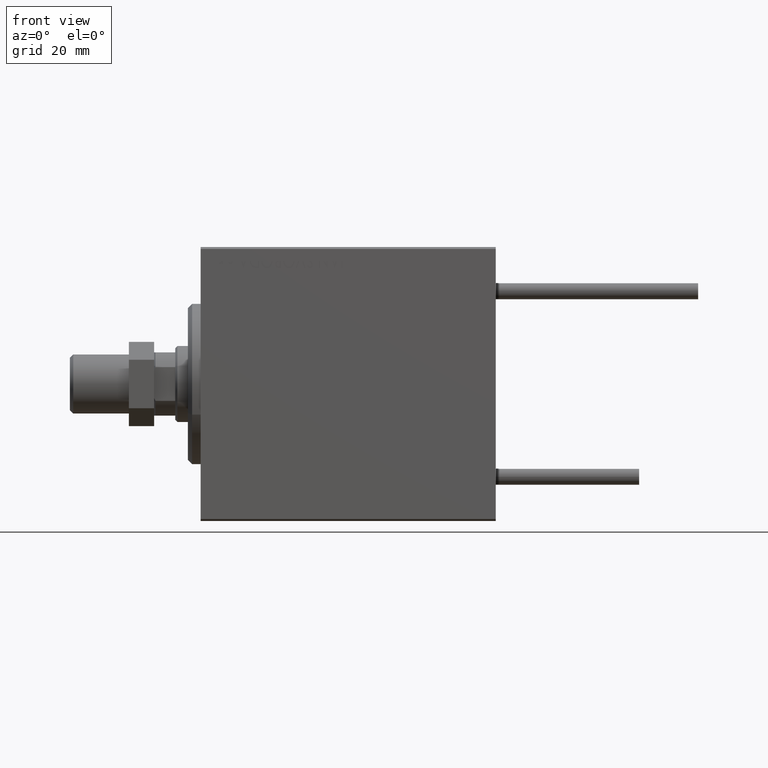
[diagram: clean part render]
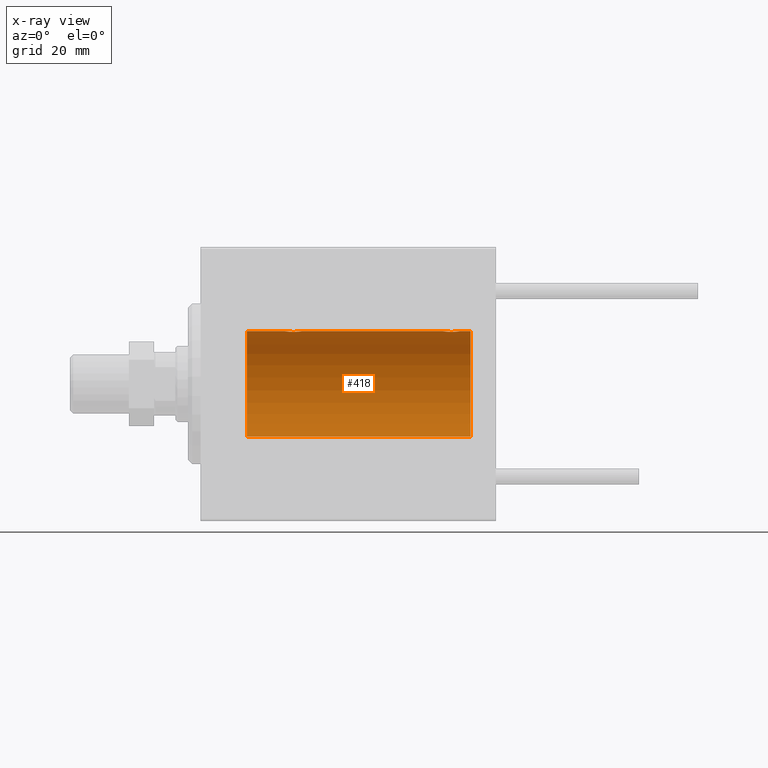
[diagram: x-ray — body ghosted, one internal face saturated and labeled with its STEP entity id]
A machine part, front view, then the same camera in x-ray: the body is ghosted and one INTERNAL B-rep face — a face not visible from any outside direction — is saturated and labeled: STEP entity #418.
In plain terms, the highlighted cylindrical surface (partial cylindrical patch) has radius 12.5 mm, axis along (-1, -0, -0).
Its self-contained STEP definition (entity closure, byte-faithful):
#418 = ADVANCED_FACE ( 'NONE', ( #16310 ), #31975, .F. ) ;
#510 = CARTESIAN_POINT ( 'NONE',  ( 60.72966493873149574, 1.598680238462370617, 12.39873273758732353 ) ) ;
#914 = CIRCLE ( 'NONE', #13122, 12.50000000000000000 ) ;
#1812 = EDGE_CURVE ( 'NONE', #5024, #32496, #23037, .T. ) ;
#1895 = CARTESIAN_POINT ( 'NONE',  ( 58.28019209405419332, 1.590288205413972866, 12.39864157855464732 ) ) ;
#2147 = CARTESIAN_POINT ( 'NONE',  ( 58.49664185700819274, 1.734998657226764163, 12.37922086519035858 ) ) ;
#3859 = CARTESIAN_POINT ( 'NONE',  ( 61.43604351777364059, 0.5184196815546071591, 12.48990118705761354 ) ) ;
#4113 = CARTESIAN_POINT ( 'NONE',  ( 60.50683120447499164, 1.747608771958137908, 12.37764291807175354 ) ) ;
#4988 = DIRECTION ( 'NONE',  ( -1.000000000000000000, -0.000000000000000000, -0.000000000000000000 ) ) ;
#5024 = VERTEX_POINT ( 'NONE', #14759 ) ;
#5656 = AXIS2_PLACEMENT_3D ( 'NONE', #35651, #23848, #9362 ) ;
#5753 = CARTESIAN_POINT ( 'NONE',  ( 57.50000000000000000, -7.266434456262306043E-23, 12.50000000000000000 ) ) ;
#6208 = CARTESIAN_POINT ( 'NONE',  ( 20.20257508083844300, 0.8868029758979382171, 12.46909283808506430 ) ) ;
#6943 = LINE ( 'NONE', #42127, #41298 ) ;
#6975 = CARTESIAN_POINT ( 'NONE',  ( 20.78019209405420042, 1.590288205413970646, 12.39864157855465088 ) ) ;
#7342 = VERTEX_POINT ( 'NONE', #40807 ) ;
#8736 = CARTESIAN_POINT ( 'NONE',  ( 61.29699211628619793, 0.8876934327478148701, 12.46903010196599659 ) ) ;
#8844 = LINE ( 'NONE', #48596, #45141 ) ;
#9362 = DIRECTION ( 'NONE',  ( 0.000000000000000000, 0.000000000000000000, 1.000000000000000000 ) ) ;
#9606 = CARTESIAN_POINT ( 'NONE',  ( 57.50000000000000000, 0.1306394121199370428, 12.50000000000000000 ) ) ;
#10305 = CARTESIAN_POINT ( 'NONE',  ( 20.41008591319371490, 1.220297236145720277, 12.44076681548080288 ) ) ;
#10350 = CARTESIAN_POINT ( 'NONE',  ( 57.76529257602388157, 1.003863686549167022, 12.46009879577771429 ) ) ;
#10569 = CARTESIAN_POINT ( 'NONE',  ( 20.49266449635678100, 1.321095788880537247, 12.43034574091277911 ) ) ;
#10692 = VECTOR ( 'NONE', #16670, 1000.000000000000000 ) ;
#11233 = ORIENTED_EDGE ( 'NONE', *, *, #24373, .F. ) ;
#12804 = ORIENTED_EDGE ( 'NONE', *, *, #27680, .F. ) ;
#12974 = CARTESIAN_POINT ( 'NONE',  ( 64.00000000000000000, 0.000000000000000000, 0.000000000000000000 ) ) ;
#13122 = AXIS2_PLACEMENT_3D ( 'NONE', #12974, #20948, #44293 ) ;
#13980 = DIRECTION ( 'NONE',  ( -1.000000000000000000, -0.000000000000000000, -0.000000000000000000 ) ) ;
#14190 = VERTEX_POINT ( 'NONE', #46350 ) ;
#14423 = CARTESIAN_POINT ( 'NONE',  ( 19.99999999999999645, -7.265724481447607133E-23, 12.50000000000000000 ) ) ;
#14495 = LINE ( 'NONE', #37356, #36098 ) ;
#14689 = CARTESIAN_POINT ( 'NONE',  ( 20.06438225478150628, 0.5201193324741335555, 12.48983485452575337 ) ) ;
#14759 = CARTESIAN_POINT ( 'NONE',  ( 61.50000000000000711, -7.215738317004035941E-16, 12.50000000000000000 ) ) ;
#14902 = CARTESIAN_POINT ( 'NONE',  ( 57.50000000000000000, -7.266434456262306043E-23, 12.50000000000000000 ) ) ;
#14944 = CARTESIAN_POINT ( 'NONE',  ( 21.11343686466984693, 1.797558627508996532, 12.37018026341339194 ) ) ;
#14955 = ORIENTED_EDGE ( 'NONE', *, *, #28028, .T. ) ;
#15459 = ORIENTED_EDGE ( 'NONE', *, *, #1812, .T. ) ;
#16310 = FACE_OUTER_BOUND ( 'NONE', #26071, .T. ) ;
#16645 = CARTESIAN_POINT ( 'NONE',  ( 10.99999999999999645, 1.530808498934191521E-15, -12.50000000000000000 ) ) ;
#16670 = DIRECTION ( 'NONE',  ( -1.000000000000000000, -0.000000000000000000, -0.000000000000000000 ) ) ;
#16862 = AXIS2_PLACEMENT_3D ( 'NONE', #47610, #32229, #47861 ) ;
#17169 = CARTESIAN_POINT ( 'NONE',  ( 64.00000000000000000, 0.000000000000000000, 12.50000000000000000 ) ) ;
#17215 = ORIENTED_EDGE ( 'NONE', *, *, #29237, .T. ) ;
#17831 = CARTESIAN_POINT ( 'NONE',  ( 57.51309615233746086, 0.2633501011236094591, 12.49788564268283864 ) ) ;
#18292 = CARTESIAN_POINT ( 'NONE',  ( 21.73730537545402086, 1.986986967296538564, 12.34109209020652465 ) ) ;
#18550 = CARTESIAN_POINT ( 'NONE',  ( 23.79699211628616240, 0.8876934327478146480, 12.46903010196599304 ) ) ;
#18814 = CARTESIAN_POINT ( 'NONE',  ( 22.26211806331624743, 1.999901172190676757, 12.33897869807161563 ) ) ;
#19061 = CARTESIAN_POINT ( 'NONE',  ( 20.99664185700817498, 1.734998657226762386, 12.37922086519035680 ) ) ;
#19545 = CARTESIAN_POINT ( 'NONE',  ( 59.23730537545403507, 1.986986967296537676, 12.34109209020652820 ) ) ;
#20055 = CARTESIAN_POINT ( 'NONE',  ( 61.39747729701806378, 0.6455696738844931559, 12.48390768591463384 ) ) ;
#20933 = CARTESIAN_POINT ( 'NONE',  ( 57.60226968606340847, 0.6448065707253002321, 12.48394649977301540 ) ) ;
#20948 = DIRECTION ( 'NONE',  ( -1.000000000000000000, 0.000000000000000000, 0.000000000000000000 ) ) ;
#21286 = CIRCLE ( 'NONE', #5656, 12.50000000000000000 ) ;
#22086 = VERTEX_POINT ( 'NONE', #32419 ) ;
#22641 = EDGE_CURVE ( 'NONE', #7342, #42306, #21286, .T. ) ;
#23037 = B_SPLINE_CURVE_WITH_KNOTS ( 'NONE', 3,
 ( #39043, #43661, #47745, #3859, #20055, #8736, #23655, #24415, #35710, #510, #4113, #24161, #40064, #23396, #19545, #31338, #35203, #39301, #2147, #1895, #33737, #33230, #49368, #10350, #37596, #20933, #40933, #17831, #9606, #5753 ),
 .UNSPECIFIED., .F., .F.,
 ( 4, 2, 2, 2, 2, 2, 2, 2, 2, 2, 2, 2, 2, 2, 4 ),
 ( 7.010636526547347862E-19, 0.0003914362731607671695, 0.0007828725463215335800, 0.001174308819482300153, 0.001565745092643066510, 0.002348617638964585128, 0.003131490185286103529, 0.003522926458446862079, 0.003914362731607621063, 0.004305799004768380046, 0.004697235277929138163, 0.005088671551089898014, 0.005480107824250656998, 0.005871544097411415114, 0.006262980370572174098 ),
 .UNSPECIFIED. ) ;
#23132 = DIRECTION ( 'NONE',  ( -1.000000000000000000, -0.000000000000000000, -0.000000000000000000 ) ) ;
#23396 = CARTESIAN_POINT ( 'NONE',  ( 59.37007370639736337, 2.000049200055400878, 12.33895470450623222 ) ) ;
#23655 = CARTESIAN_POINT ( 'NONE',  ( 61.23553255438137910, 1.002494658017159423, 12.46021263690096958 ) ) ;
#23848 = DIRECTION ( 'NONE',  ( -1.000000000000000000, 0.000000000000000000, 0.000000000000000000 ) ) ;
#23891 = CARTESIAN_POINT ( 'NONE',  ( 24.00000000000000000, -4.527848004210791175E-16, 12.50000000000000000 ) ) ;
#24161 = CARTESIAN_POINT ( 'NONE',  ( 60.02563587170491388, 1.947190906025042967, 12.34781876294798408 ) ) ;
#24373 = EDGE_CURVE ( 'NONE', #22086, #42306, #14495, .T. ) ;
#24415 = CARTESIAN_POINT ( 'NONE',  ( 61.09036680009405984, 1.219754986802282115, 12.44082361696003147 ) ) ;
#25739 = CARTESIAN_POINT ( 'NONE',  ( 24.00000000000000355, 0.1323736289504353625, 12.50000000000000000 ) ) ;
#26071 = EDGE_LOOP ( 'NONE', ( #11233, #12804, #44138, #15459, #17215, #14955, #27782, #50770 ) ) ;
#26254 = CARTESIAN_POINT ( 'NONE',  ( 21.35584766229706588, 1.897967064543088833, 12.35517291625592051 ) ) ;
#26507 = CARTESIAN_POINT ( 'NONE',  ( 23.89747729701804602, 0.6455696738844928229, 12.48390768591463207 ) ) ;
#26583 = EDGE_CURVE ( 'NONE', #30717, #7342, #8844, .T. ) ;
#26763 = CARTESIAN_POINT ( 'NONE',  ( 20.26529257602389222, 1.003863686549171019, 12.46009879577771606 ) ) ;
#27680 = EDGE_CURVE ( 'NONE', #14190, #22086, #914, .T. ) ;
#27782 = ORIENTED_EDGE ( 'NONE', *, *, #26583, .T. ) ;
#28028 = EDGE_CURVE ( 'NONE', #41467, #30717, #44559, .T. ) ;
#29237 = EDGE_CURVE ( 'NONE', #32496, #41467, #44618, .T. ) ;
#29842 = CARTESIAN_POINT ( 'NONE',  ( 20.10226968606341558, 0.6448065707253003431, 12.48394649977302073 ) ) ;
#30101 = CARTESIAN_POINT ( 'NONE',  ( 20.00000000000000000, 0.1306394121199368485, 12.50000000000000000 ) ) ;
#30356 = CARTESIAN_POINT ( 'NONE',  ( 24.00000000000000000, -4.527848004210791175E-16, 12.50000000000000000 ) ) ;
#30609 = CARTESIAN_POINT ( 'NONE',  ( 20.01309615233744310, 0.2633501011236105693, 12.49788564268283864 ) ) ;
#30717 = VERTEX_POINT ( 'NONE', #47314 ) ;
#31338 = CARTESIAN_POINT ( 'NONE',  ( 58.98062649148444336, 1.935814255713572241, 12.34922241902463291 ) ) ;
#31975 = CYLINDRICAL_SURFACE ( 'NONE', #16862, 12.50000000000000000 ) ;
#32229 = DIRECTION ( 'NONE',  ( -1.000000000000000000, -0.000000000000000000, -0.000000000000000000 ) ) ;
#32419 = CARTESIAN_POINT ( 'NONE',  ( 64.00000000000000000, 1.530808498934191521E-15, -12.50000000000000000 ) ) ;
#32496 = VERTEX_POINT ( 'NONE', #14902 ) ;
#33230 = CARTESIAN_POINT ( 'NONE',  ( 57.99266449635677390, 1.321095788880536581, 12.43034574091277733 ) ) ;
#33698 = CARTESIAN_POINT ( 'NONE',  ( 22.52563587170489967, 1.947190906025044299, 12.34781876294798408 ) ) ;
#33737 = CARTESIAN_POINT ( 'NONE',  ( 58.17897166499302841, 1.507394620545639219, 12.40913174964213539 ) ) ;
#34726 = CARTESIAN_POINT ( 'NONE',  ( 23.98698791483650794, 0.2624928479599913378, 12.49789934882883458 ) ) ;
#35203 = CARTESIAN_POINT ( 'NONE',  ( 58.85584766229707299, 1.897967064543087279, 12.35517291625592229 ) ) ;
#35651 = CARTESIAN_POINT ( 'NONE',  ( 10.99999999999999645, 0.000000000000000000, 0.000000000000000000 ) ) ;
#35710 = CARTESIAN_POINT ( 'NONE',  ( 61.00601633672791024, 1.322451657002079006, 12.43019346654084956 ) ) ;
#36098 = VECTOR ( 'NONE', #13980, 1000.000000000000000 ) ;
#37356 = CARTESIAN_POINT ( 'NONE',  ( 64.00000000000000000, 1.530808498934191521E-15, -12.50000000000000000 ) ) ;
#37551 = CARTESIAN_POINT ( 'NONE',  ( 23.50601633672791735, 1.322451657002076786, 12.43019346654085311 ) ) ;
#37596 = CARTESIAN_POINT ( 'NONE',  ( 57.70257508083844300, 0.8868029758979379951, 12.46909283808506430 ) ) ;
#38568 = CARTESIAN_POINT ( 'NONE',  ( 23.93604351777363348, 0.5184196815546062709, 12.48990118705761532 ) ) ;
#39043 = CARTESIAN_POINT ( 'NONE',  ( 61.50000000000000711, -7.215738317004035941E-16, 12.50000000000000000 ) ) ;
#39301 = CARTESIAN_POINT ( 'NONE',  ( 58.61343686466983627, 1.797558627508994089, 12.37018026341338484 ) ) ;
#40064 = CARTESIAN_POINT ( 'NONE',  ( 59.76211806331624388, 1.999901172190677201, 12.33897869807161385 ) ) ;
#40807 = CARTESIAN_POINT ( 'NONE',  ( 10.99999999999999645, 0.000000000000000000, 12.50000000000000000 ) ) ;
#40933 = CARTESIAN_POINT ( 'NONE',  ( 57.56438225478149917, 0.5201193324741324453, 12.48983485452574982 ) ) ;
#41298 = VECTOR ( 'NONE', #23132, 1000.000000000000000 ) ;
#41386 = CARTESIAN_POINT ( 'NONE',  ( 23.59036680009404918, 1.219754986802281005, 12.44082361696003325 ) ) ;
#41467 = VERTEX_POINT ( 'NONE', #23891 ) ;
#42127 = CARTESIAN_POINT ( 'NONE',  ( 64.00000000000000000, 0.000000000000000000, 12.50000000000000000 ) ) ;
#42160 = CARTESIAN_POINT ( 'NONE',  ( 23.22966493873148863, 1.598680238462369507, 12.39873273758732353 ) ) ;
#42306 = VERTEX_POINT ( 'NONE', #16645 ) ;
#43661 = CARTESIAN_POINT ( 'NONE',  ( 61.50000000000000711, 0.1323736289504353347, 12.50000000000000178 ) ) ;
#44138 = ORIENTED_EDGE ( 'NONE', *, *, #47996, .T. ) ;
#44293 = DIRECTION ( 'NONE',  ( 0.000000000000000000, 0.000000000000000000, 1.000000000000000000 ) ) ;
#44559 = B_SPLINE_CURVE_WITH_KNOTS ( 'NONE', 3,
 ( #30356, #25739, #34726, #38568, #26507, #18550, #50095, #41386, #37551, #42160, #45744, #33698, #18814, #49839, #18292, #49575, #26254, #14944, #19061, #6975, #45998, #10569, #10305, #26763, #6208, #29842, #14689, #30609, #30101, #14423 ),
 .UNSPECIFIED., .F., .F.,
 ( 4, 2, 2, 2, 2, 2, 2, 2, 2, 2, 2, 2, 2, 2, 4 ),
 ( 4.399147420600248434E-19, 0.0003914362731607583874, 0.0007828725463215163412, 0.001174308819482274349, 0.001565745092643032249, 0.002348617638964548265, 0.003131490185286064497, 0.003522926458446828252, 0.003914362731607592440, 0.004305799004768355760, 0.004697235277929119081, 0.005088671551089882401, 0.005480107824250645722, 0.005871544097411409910, 0.006262980370572172363 ),
 .UNSPECIFIED. ) ;
#44618 = LINE ( 'NONE', #17169, #10692 ) ;
#45141 = VECTOR ( 'NONE', #4988, 1000.000000000000000 ) ;
#45744 = CARTESIAN_POINT ( 'NONE',  ( 23.00683120447499519, 1.747608771958141016, 12.37764291807175887 ) ) ;
#45998 = CARTESIAN_POINT ( 'NONE',  ( 20.67897166499301775, 1.507394620545639441, 12.40913174964213361 ) ) ;
#46350 = CARTESIAN_POINT ( 'NONE',  ( 64.00000000000000000, 0.000000000000000000, 12.50000000000000000 ) ) ;
#47314 = CARTESIAN_POINT ( 'NONE',  ( 19.99999999999999645, -7.265724481447607133E-23, 12.50000000000000000 ) ) ;
#47610 = CARTESIAN_POINT ( 'NONE',  ( 64.00000000000000000, 0.000000000000000000, 0.000000000000000000 ) ) ;
#47745 = CARTESIAN_POINT ( 'NONE',  ( 61.48698791483653281, 0.2624928479599922815, 12.49789934882883458 ) ) ;
#47861 = DIRECTION ( 'NONE',  ( 0.000000000000000000, 0.000000000000000000, 1.000000000000000000 ) ) ;
#47996 = EDGE_CURVE ( 'NONE', #14190, #5024, #6943, .T. ) ;
#48596 = CARTESIAN_POINT ( 'NONE',  ( 64.00000000000000000, 0.000000000000000000, 12.50000000000000000 ) ) ;
#49368 = CARTESIAN_POINT ( 'NONE',  ( 57.91008591319372556, 1.220297236145716946, 12.44076681548080288 ) ) ;
#49575 = CARTESIAN_POINT ( 'NONE',  ( 21.48062649148445402, 1.935814255713573351, 12.34922241902463114 ) ) ;
#49839 = CARTESIAN_POINT ( 'NONE',  ( 21.87007370639734916, 2.000049200055400878, 12.33895470450623044 ) ) ;
#50095 = CARTESIAN_POINT ( 'NONE',  ( 23.73553255438136134, 1.002494658017157647, 12.46021263690096958 ) ) ;
#50770 = ORIENTED_EDGE ( 'NONE', *, *, #22641, .T. ) ;